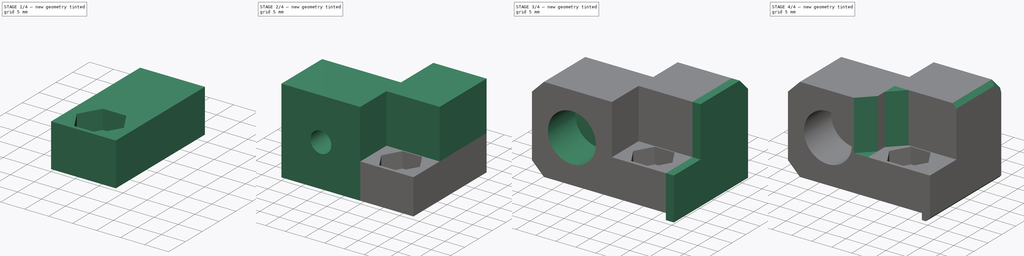
[diagram: build sequence overview — one tinted view per stage of 4, left to right]
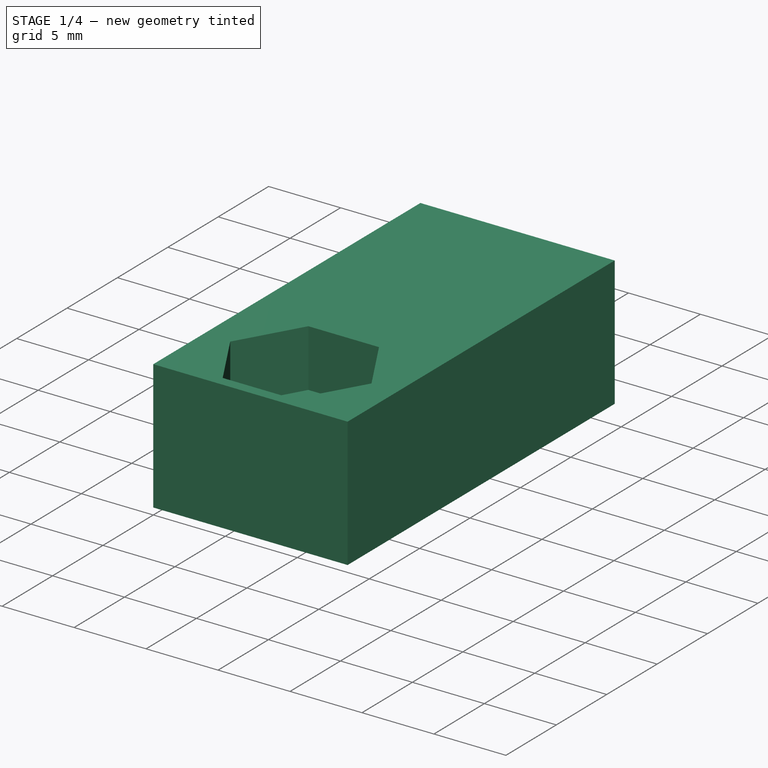
[diagram: stage 1 of 4 — iso view after this stage's code; geometry added in this stage tinted green]
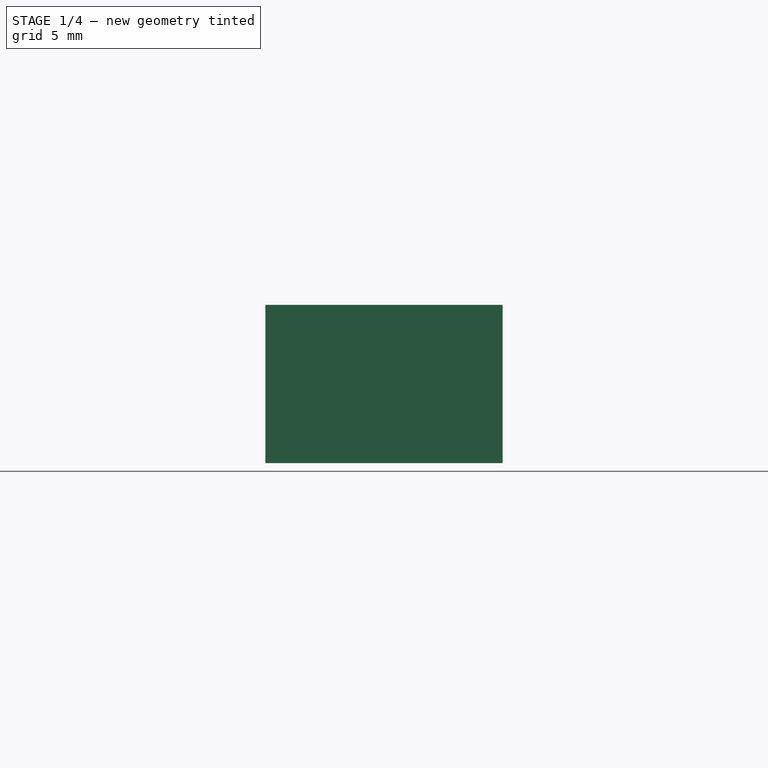
[diagram: stage 1 of 4 — front view after this stage's code; geometry added in this stage tinted green]
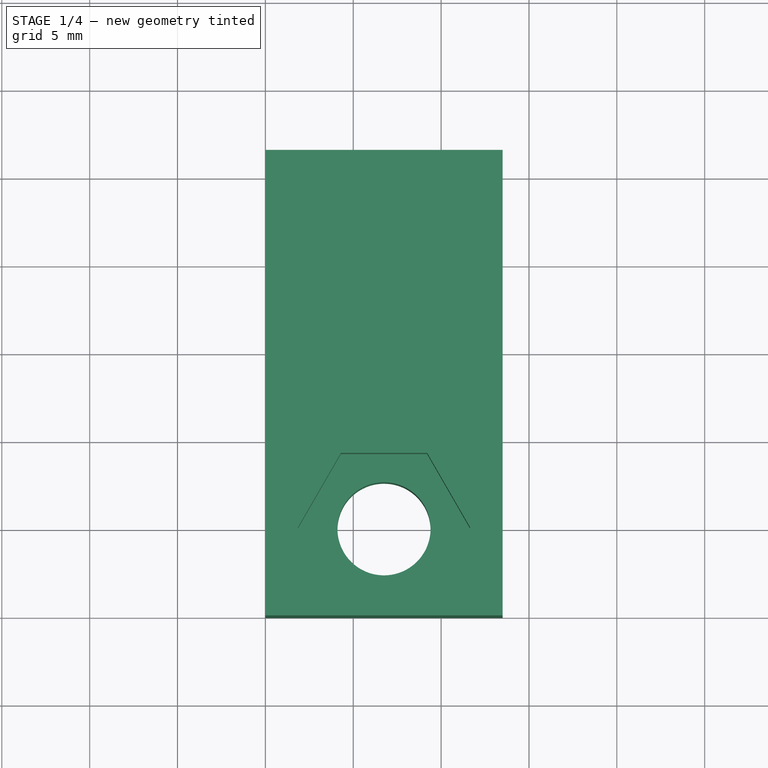
[diagram: stage 1 of 4 — top view after this stage's code; geometry added in this stage tinted green]
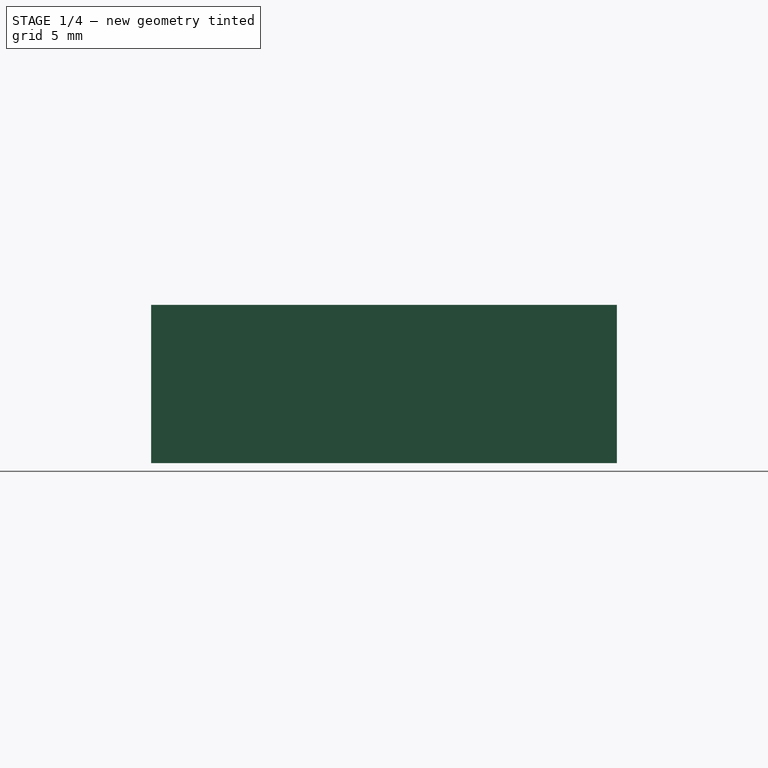
[diagram: stage 1 of 4 — right view after this stage's code; geometry added in this stage tinted green]
FCSTD DOCUMENT  (FreeCAD 0.18.4R)
Label: feeder-floor
License: All rights reserved
LicenseURL: http://en.wikipedia.org/wiki/All_rights_reserved
objects: Sketcher::SketchObject×6, PartDesign::Pad×5, PartDesign::Chamfer×3, PartDesign::Plane×2, PartDesign::Pocket×1, PartDesign::Body×1
note: 24 computed .brp shape members not serialized (recipe doc carries the construction recipe); baked Part::Feature solids carry a one-line shape summary decoded from their .brp

FEATURE [Sketcher::SketchObject] Sketch
  MapMode = 5
  Support = -> [XY_Plane]
  sketch-geometry (5):
    g0: LineSegment StartX=0 StartY=0 StartZ=0 EndX=13.5 EndY=0 EndZ=0
    g1: LineSegment StartX=13.5 StartY=0 StartZ=0 EndX=13.5 EndY=26.5 EndZ=0
    g2: LineSegment StartX=13.5 StartY=26.5 StartZ=0 EndX=0 EndY=26.5 EndZ=0
    g3: LineSegment StartX=0 StartY=26.5 StartZ=0 EndX=0 EndY=0 EndZ=0
    g4: Circle CenterX=6.75 CenterY=5 CenterZ=0 NormalX=0 NormalY=0 NormalZ=1 AngleXU=0 Radius=2.65
  constraints (14):
    c: Coincident(g0,g1)
    c: Coincident(g1,g2)
    c: Coincident(g2,g3)
    c: Coincident(g3,g0)
    c: Horizontal(g0)
    c: Horizontal(g2)
    c: Vertical(g1)
    c: Vertical(g3)
    c: Coincident(g0,g-1)
    c: DistanceY(g3,g3) = 26.5
    c: DistanceX(g0,g0) = 13.5
    c: Diameter(g4) = 5.3
    c: DistanceX(g0,g4) = 6.75
    c: DistanceY(g0,g4) = 5
FEATURE [PartDesign::Pad] Pad
  Length = 5
  Length2 = 100
  Profile = -> Sketch
  Reversed = true
  Type = 0
FEATURE [Sketcher::SketchObject] Sketch001
  MapMode = 5
  Support = -> [XY_Plane]
  sketch-geometry (13):
    g0: LineSegment StartX=0 StartY=0 StartZ=0 EndX=4.72927 EndY=0 EndZ=0
    g1: LineSegment StartX=13.5 StartY=0 StartZ=0 EndX=13.5 EndY=26.5 EndZ=0
    g2: LineSegment StartX=13.5 StartY=26.5 StartZ=0 EndX=0 EndY=26.5 EndZ=0
    g3: LineSegment StartX=0 StartY=26.5 StartZ=0 EndX=0 EndY=0 EndZ=0
    g4: LineSegment StartX=9.20374 StartY=0.75 StartZ=0 EndX=11.6575 EndY=5 EndZ=0
    g5: LineSegment StartX=11.6575 StartY=5 StartZ=0 EndX=9.20374 EndY=9.25 EndZ=0
    g6: LineSegment StartX=9.20374 StartY=9.25 StartZ=0 EndX=4.29626 EndY=9.25 EndZ=0
    g7: LineSegment StartX=4.29626 StartY=9.25 StartZ=0 EndX=1.84252 EndY=5 EndZ=0
    g8: LineSegment StartX=1.84252 StartY=5 StartZ=0 EndX=4.29626 EndY=0.75 EndZ=0
    g9: LineSegment StartX=4.29626 StartY=0.75 StartZ=0 EndX=9.20374 EndY=0.75 EndZ=0
    g10: Circle [constr] CenterX=6.75 CenterY=5 CenterZ=0 NormalX=0 NormalY=0 NormalZ=1 AngleXU=0 Radius=4.90748
    g11: LineSegment StartX=8.77073 StartY=0 StartZ=0 EndX=13.5 EndY=0 EndZ=0
    g12: LineSegment StartX=4.72927 StartY=0 StartZ=0 EndX=8.77073 EndY=0 EndZ=0
  constraints (33):
    c: Coincident(g11,g1)
    c: Coincident(g1,g2)
    c: Coincident(g2,g3)
    c: Coincident(g3,g0)
    c: Horizontal(g0)
    c: Horizontal(g2)
    c: Vertical(g1)
    c: Vertical(g3)
    c: Coincident(g0,g-1)
    c: DistanceY(g3,g3) = 26.5
    c: DistanceX(g0,g11) = 13.5
    c: Coincident(g4,g5)
    c: Coincident(g5,g6)
    c: Coincident(g6,g7)
    c: Coincident(g7,g8)
    c: Coincident(g8,g9)
    c: Coincident(g9,g4)
    c: Equal(g4, g5-g9) x5
    c: PointOnObject(g4,g10)
    c: PointOnObject(g5,g10)
    c: PointOnObject(g6,g10)
    c: PointOnObject(g7,g10)
    c: PointOnObject(g8,g10)
    c: PointOnObject(g9,g10)
    c: Horizontal(g6)
    c: DistanceY(g0,g10) = 5
    c: DistanceY(g4,g5) = 8.5
    c: DistanceX(g0,g10) = 6.75
    c: PointOnObject(g0,g8)
    c: PointOnObject(g11,g4)
    c: Tangent(g0,g11)
    c: Coincident(g12,g0)
    c: Coincident(g12,g11)
FEATURE [PartDesign::Pad] Pad001
  BaseFeature = -> Pad
  Length = 4
  Length2 = 100
  Profile = -> Sketch001
  Type = 0
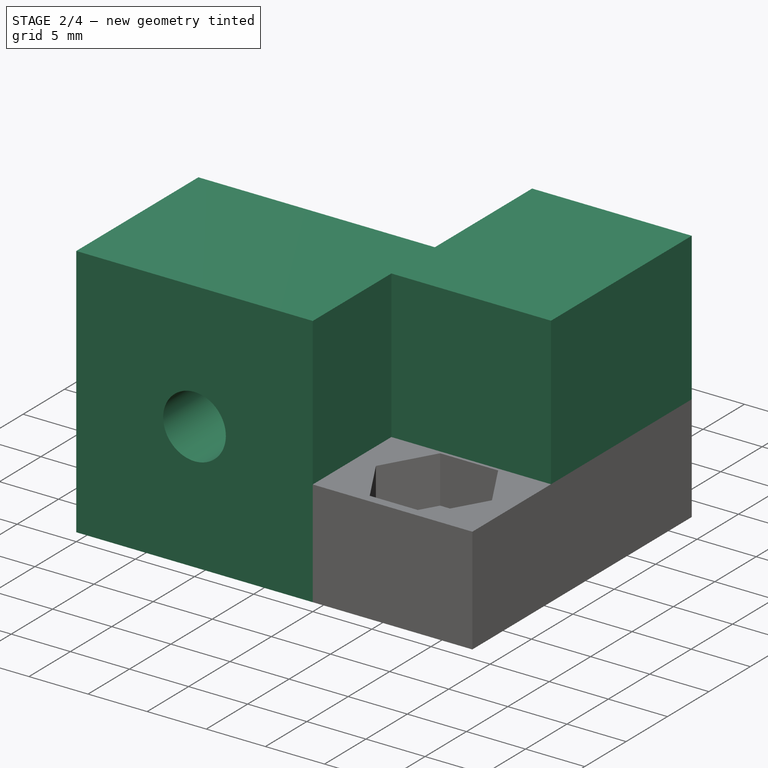
[diagram: stage 2 of 4 — iso view after this stage's code; geometry added in this stage tinted green]
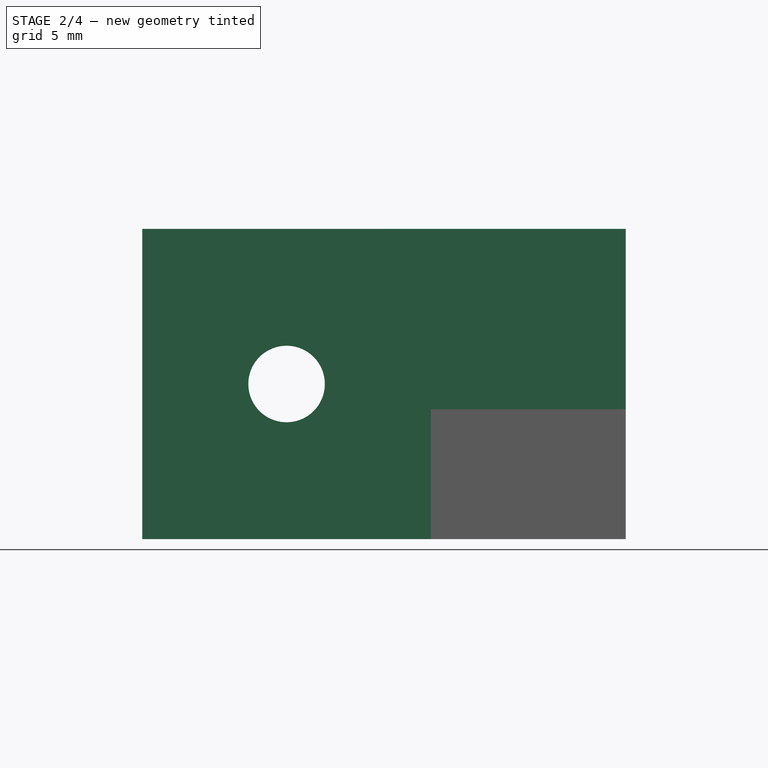
[diagram: stage 2 of 4 — front view after this stage's code; geometry added in this stage tinted green]
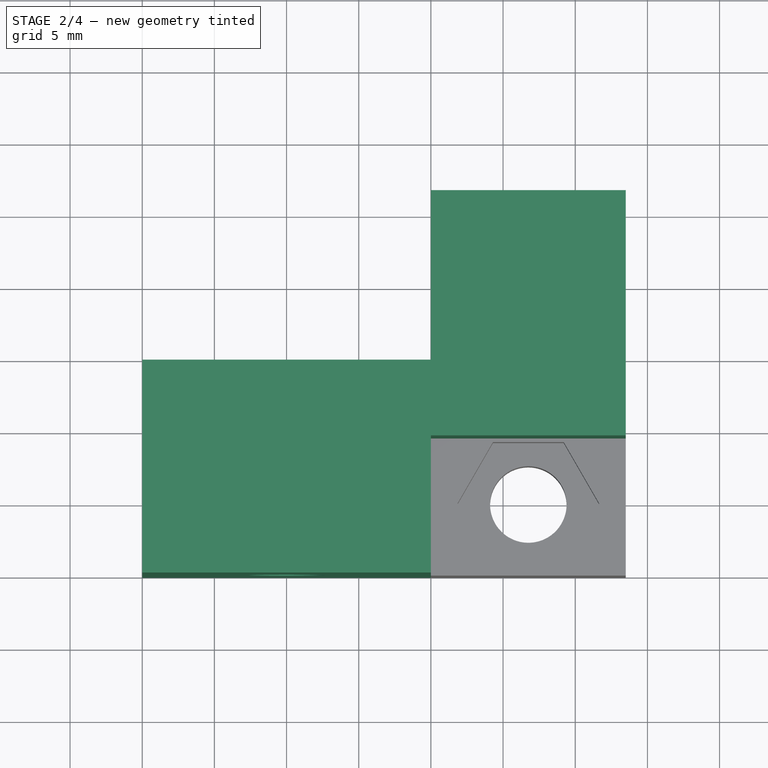
[diagram: stage 2 of 4 — top view after this stage's code; geometry added in this stage tinted green]
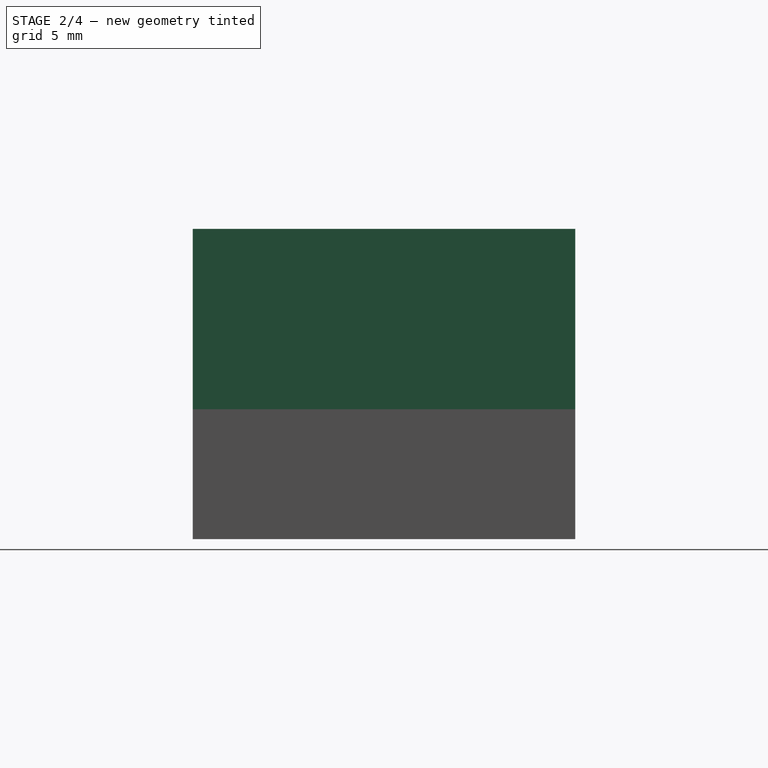
[diagram: stage 2 of 4 — right view after this stage's code; geometry added in this stage tinted green]
FEATURE [Sketcher::SketchObject] Sketch002
  MapMode = 5
  Support = -> [XY_Plane]
  sketch-geometry (4):
    g0: LineSegment StartX=0 StartY=26.5 StartZ=0 EndX=13.5 EndY=26.5 EndZ=0
    g1: LineSegment StartX=13.5 StartY=26.5 StartZ=0 EndX=13.5 EndY=9.5 EndZ=0
    g2: LineSegment StartX=13.5 StartY=9.5 StartZ=0 EndX=0 EndY=9.5 EndZ=0
    g3: LineSegment StartX=0 StartY=9.5 StartZ=0 EndX=0 EndY=26.5 EndZ=0
  constraints (12):
    c: Coincident(g0,g1)
    c: Coincident(g1,g2)
    c: Coincident(g2,g3)
    c: Coincident(g3,g0)
    c: Horizontal(g0)
    c: Horizontal(g2)
    c: Vertical(g1)
    c: Vertical(g3)
    c: PointOnObject(g0,g-2)
    c: DistanceX(g0,g0) = 13.5
    c: DistanceY(g-1,g0) = 26.5
    c: DistanceY(g3,g3) = 17
FEATURE [PartDesign::Pad] Pad002
  BaseFeature = -> Pad001
  Length = 16.5
  Length2 = 100
  Profile = -> Sketch002
  Type = 0
FEATURE [PartDesign::Plane] DatumPlane
  AttachmentOffset = pos=(0,0,-14.75) rot=(0,0,1;0rad)
  Length = 41.6343
  MapMode = 5
  Placement = pos=(0,14.75,3.3e-15) rot=(1,0,0;1.5708rad)
  ResizeMode = 0
  Support = -> [XZ_Plane]
  Width = 32.6343
FEATURE [Sketcher::SketchObject] Sketch003
  MapMode = 5
  Placement = pos=(0,14.75,3.3e-15) rot=(1,0,0;1.5708rad)
  Support = -> [DatumPlane]
  sketch-geometry (6):
    g0: LineSegment StartX=0 StartY=-5 StartZ=0 EndX=-20 EndY=-5 EndZ=0
    g1: LineSegment StartX=-20 StartY=-5 StartZ=0 EndX=-20 EndY=16.5 EndZ=0
    g2: LineSegment StartX=-20 StartY=16.5 StartZ=0 EndX=0 EndY=16.5 EndZ=0
    g3: LineSegment StartX=0 StartY=16.5 StartZ=0 EndX=0 EndY=-5 EndZ=0
    g4: Circle CenterX=-10 CenterY=5.75 CenterZ=0 NormalX=0 NormalY=0 NormalZ=1 AngleXU=0 Radius=2.65
    g5: LineSegment [constr] StartX=-20 StartY=5.75 StartZ=0 EndX=0 EndY=5.75 EndZ=0
  constraints (18):
    c: Coincident(g0,g1)
    c: Coincident(g1,g2)
    c: Coincident(g2,g3)
    c: Coincident(g3,g0)
    c: Horizontal(g0)
    c: Horizontal(g2)
    c: Vertical(g1)
    c: Vertical(g3)
    c: PointOnObject(g0,g-2)
    c: DistanceX(g0,g0) = 20
    c: DistanceY(g-1,g2) = 16.5
    c: DistanceY(g0,g-1) = 5
    c: Diameter(g4) = 5.3
    c: PointOnObject(g5,g1)
    c: PointOnObject(g5,g3)
    c: Symmetric(g1,g0,g5)
    c: PointOnObject(g4,g5)
    c: DistanceX(g4,g2) = 10
FEATURE [PartDesign::Pad] Pad003
  BaseFeature = -> Pad002
  Length = 14.75
  Length2 = 100
  Profile = -> Sketch003
  Type = 0
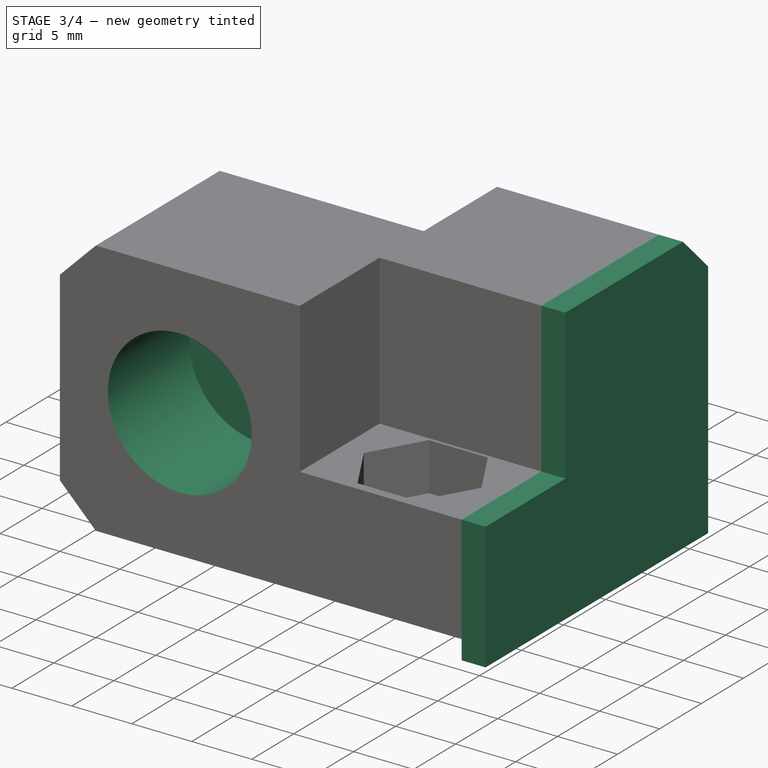
[diagram: stage 3 of 4 — iso view after this stage's code; geometry added in this stage tinted green]
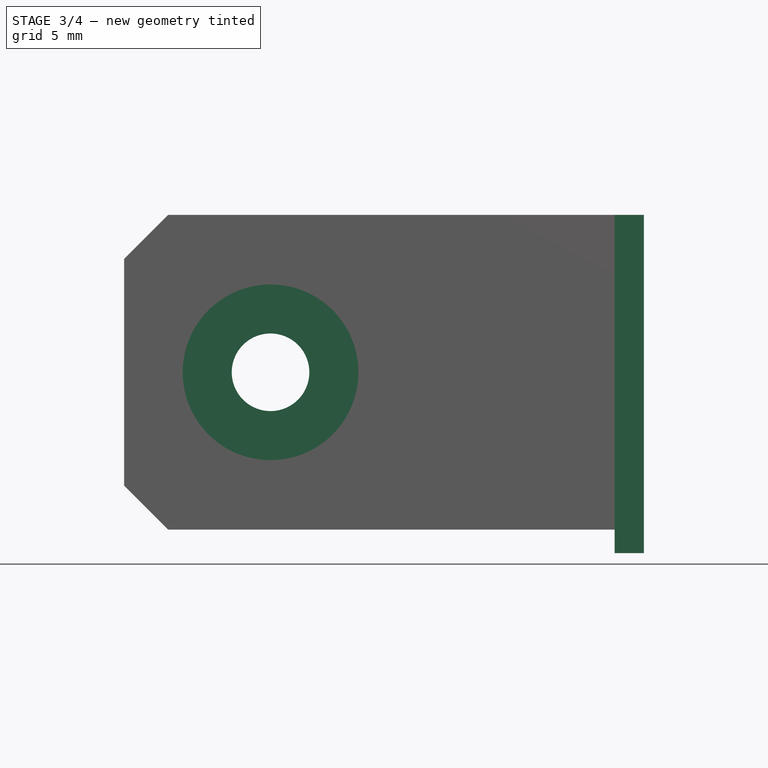
[diagram: stage 3 of 4 — front view after this stage's code; geometry added in this stage tinted green]
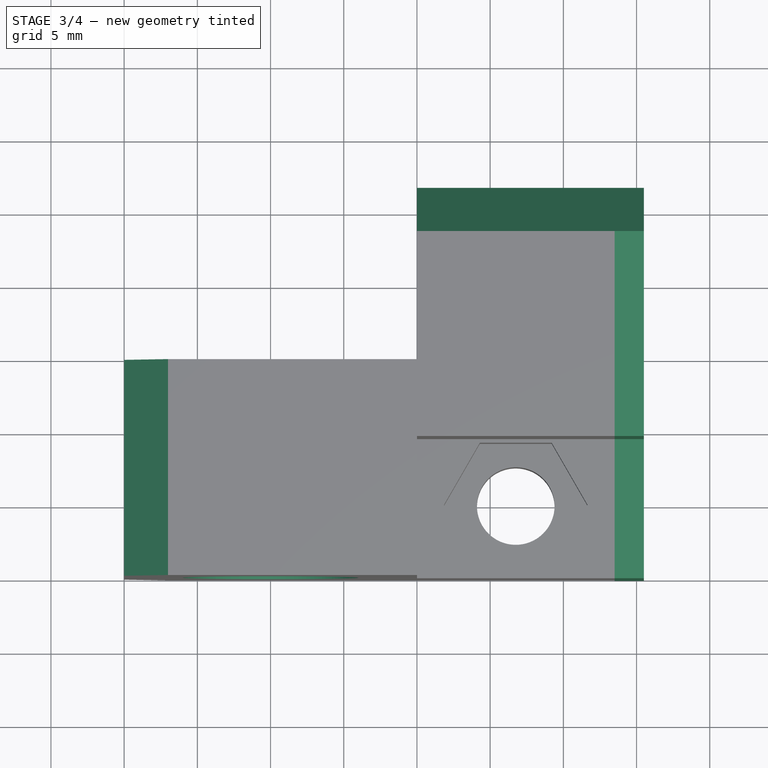
[diagram: stage 3 of 4 — top view after this stage's code; geometry added in this stage tinted green]
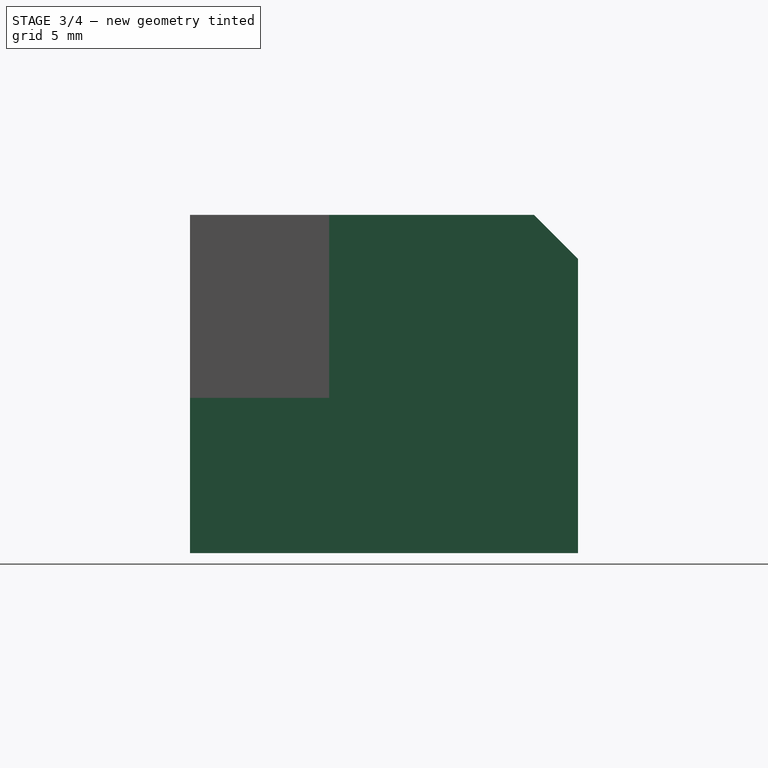
[diagram: stage 3 of 4 — right view after this stage's code; geometry added in this stage tinted green]
FEATURE [Sketcher::SketchObject] Sketch004
  MapMode = 5
  Placement = pos=(0,0,0) rot=(1,0,0;1.5708rad)
  Support = -> [XZ_Plane]
  sketch-geometry (1):
    g0: Circle CenterX=-10 CenterY=5.75 CenterZ=0 NormalX=0 NormalY=0 NormalZ=1 AngleXU=0 Radius=6
  constraints (3):
    c: DistanceX(g0,g-1) = 10
    c: DistanceY(g-1,g0) = 5.75
    c: Diameter(g0) = 12
FEATURE [PartDesign::Pocket] Pocket
  BaseFeature = -> Pad003
  Length = 9.75
  Length2 = 100
  Profile = -> Sketch004
  Type = 0
FEATURE [PartDesign::Plane] DatumPlane001
  AttachmentOffset = pos=(0,0,13.5) rot=(0,0,1;0rad)
  Length = 42.7201
  MapMode = 5
  Placement = pos=(13.5,-3e-15,3e-15) rot=(0.57735,0.57735,0.57735;2.0944rad)
  ResizeMode = 0
  Support = -> [YZ_Plane]
  Width = 32.7201
FEATURE [Sketcher::SketchObject] Sketch005
  MapMode = 5
  Placement = pos=(13.5,-3e-15,3e-15) rot=(0.57735,0.57735,0.57735;2.0944rad)
  Support = -> [DatumPlane001]
  sketch-geometry (7):
    g0: LineSegment StartX=0 StartY=0 StartZ=0 EndX=0 EndY=-6.6 EndZ=0
    g1: LineSegment StartX=0 StartY=-6.6 StartZ=0 EndX=26.5 EndY=-6.6 EndZ=0
    g2: LineSegment StartX=26.5 StartY=-6.6 StartZ=0 EndX=26.5 EndY=16.5 EndZ=0
    g3: LineSegment StartX=26.5 StartY=16.5 StartZ=0 EndX=9.5 EndY=16.5 EndZ=0
    g4: LineSegment StartX=9.5 StartY=16.5 StartZ=0 EndX=9.5 EndY=4 EndZ=0
    g5: LineSegment StartX=0 StartY=0 StartZ=0 EndX=0 EndY=4 EndZ=0
    g6: LineSegment StartX=0 StartY=4 StartZ=0 EndX=9.5 EndY=4 EndZ=0
  constraints (20):
    c: Coincident(g-1,g0)
    c: PointOnObject(g0,g-2)
    c: Coincident(g0,g1)
    c: Horizontal(g1)
    c: Coincident(g1,g2)
    c: Vertical(g2)
    c: Coincident(g2,g3)
    c: Horizontal(g3)
    c: Coincident(g3,g4)
    c: Vertical(g4)
    c: PointOnObject(g5,g-2)
    c: Coincident(g5,g6)
    c: Coincident(g6,g4)
    c: Horizontal(g6)
    c: DistanceY(g0,g5) = 4
    c: DistanceX(g6,g6) = 9.5
    c: DistanceY(g0,g0) = 6.6
    c: DistanceX(g1,g1) = 26.5
    c: DistanceY(g4,g4) = 12.5
    c: Coincident(g5,g0)
FEATURE [PartDesign::Pad] Pad004
  BaseFeature = -> Pocket
  Length = 2
  Length2 = 100
  Profile = -> Sketch005
  Type = 0
FEATURE [PartDesign::Chamfer] Chamfer
  Base = -> Pad004 [Edge67,Edge74,Edge28,Edge30]
  BaseFeature = -> Pad004
  Size = 3
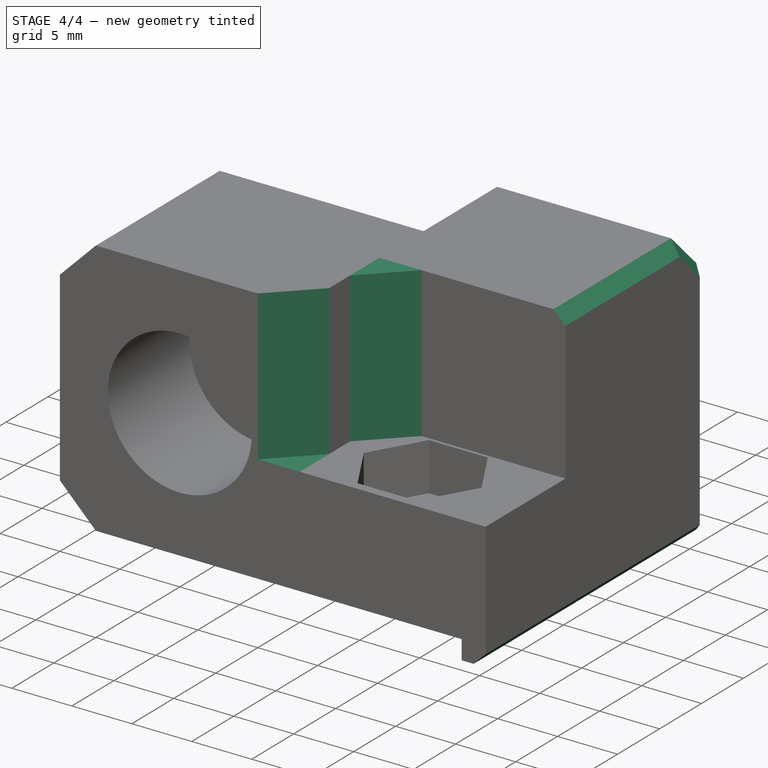
[diagram: stage 4 of 4 — iso view after this stage's code; geometry added in this stage tinted green]
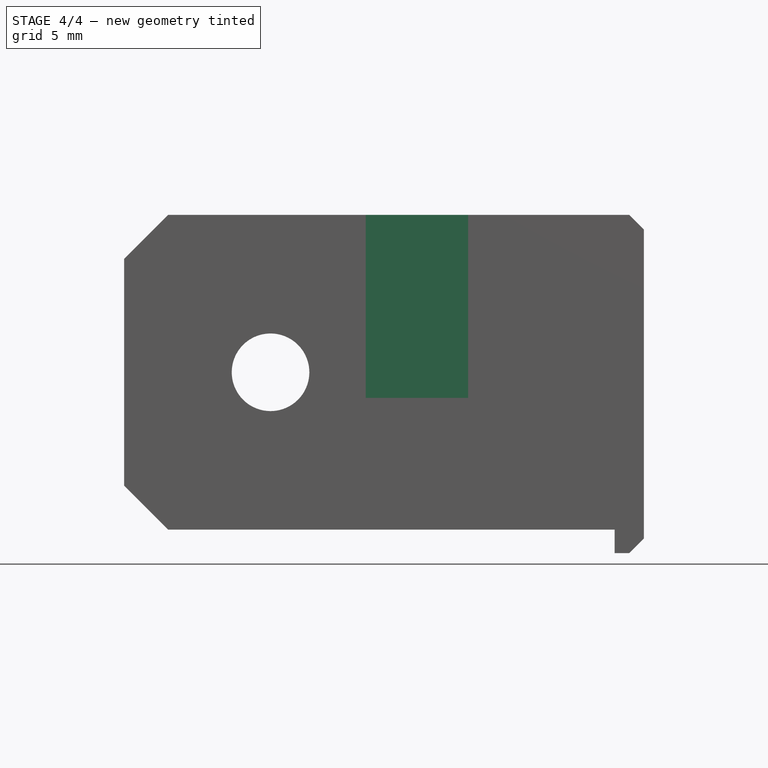
[diagram: stage 4 of 4 — front view after this stage's code; geometry added in this stage tinted green]
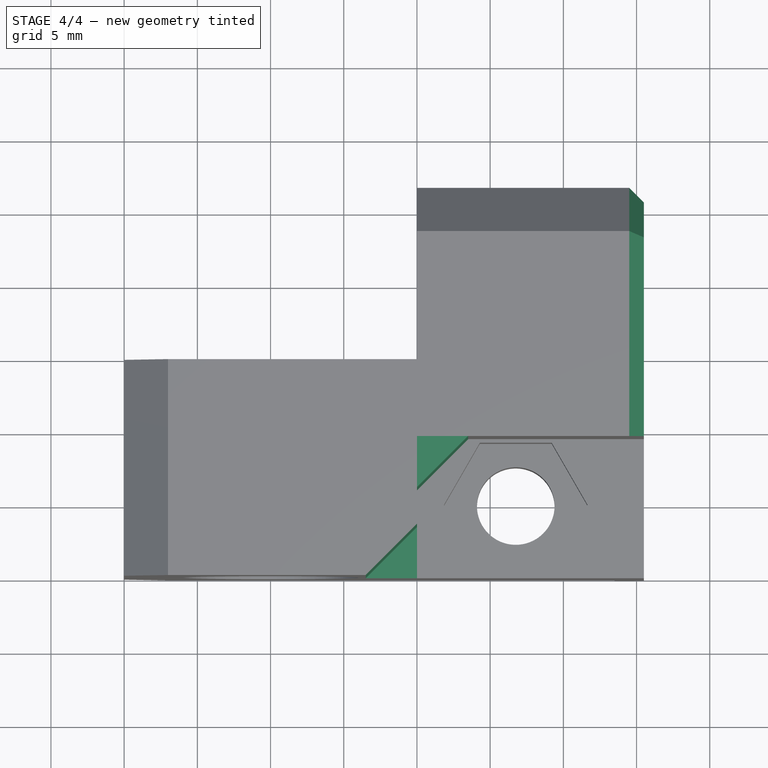
[diagram: stage 4 of 4 — top view after this stage's code; geometry added in this stage tinted green]
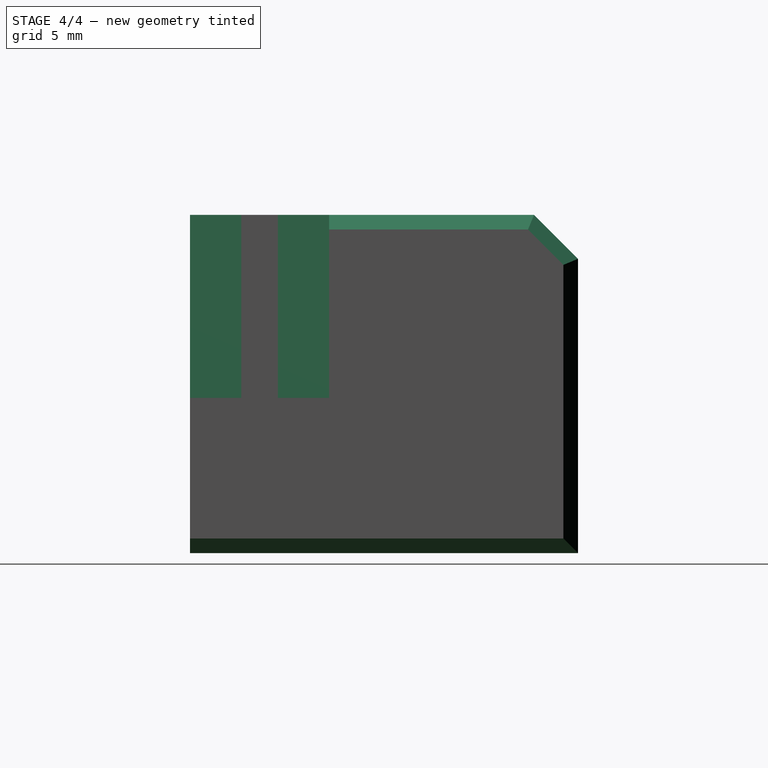
[diagram: stage 4 of 4 — right view after this stage's code; geometry added in this stage tinted green]
FEATURE [PartDesign::Chamfer] Chamfer001
  Base = -> Chamfer [Edge26,Edge7]
  BaseFeature = -> Chamfer
  Size = 3.5
FEATURE [PartDesign::Chamfer] Chamfer002
  Base = -> Chamfer001 [Edge95,Edge102,Edge101,Edge100]
  BaseFeature = -> Chamfer001
  Size = 1
FEATURE [PartDesign::Body] Body
  Group = -> [Sketch,Pad,Sketch001,Pad001,Sketch002,Pad002,DatumPlane,Sketch003,Pad003,Sketch004,Pocket,DatumPlane001,Sketch005,Pad004,Chamfer,Chamfer001,Chamfer002]
  Origin = -> Origin
  Tip = -> Chamfer002
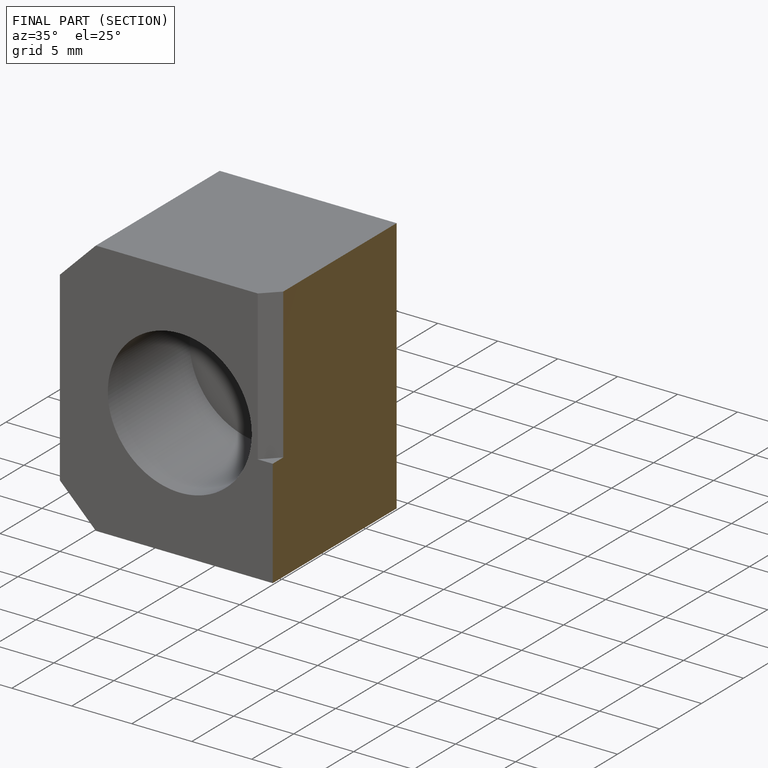
[diagram: finished part — half-section view (interior)]
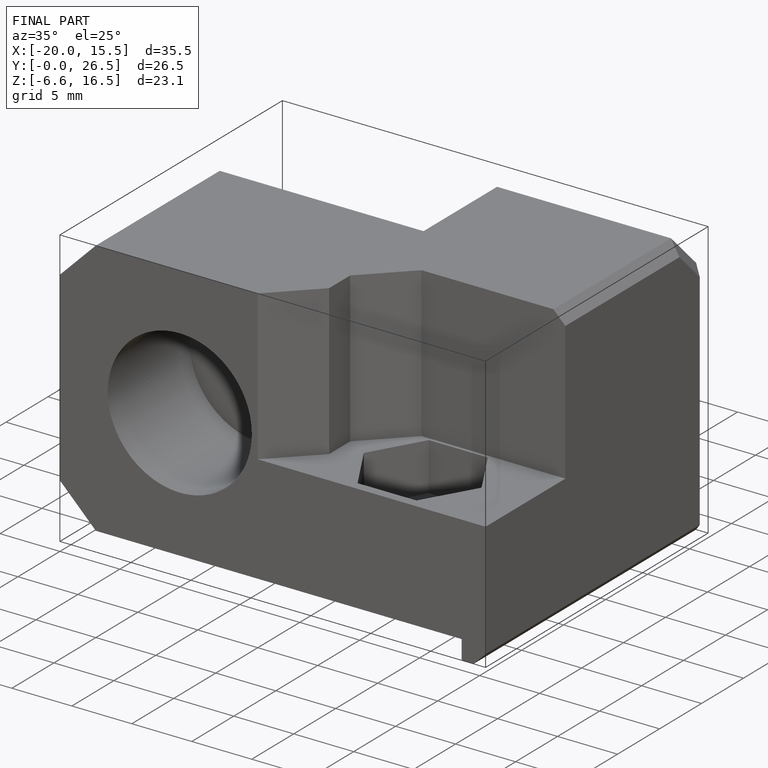
[diagram: finished part — iso view with bounding-box wireframe]
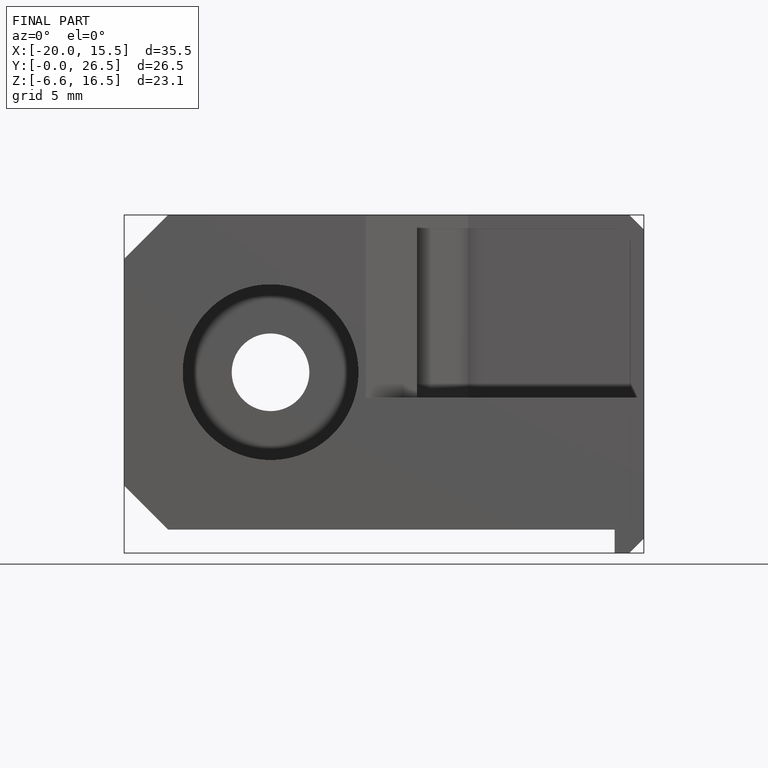
[diagram: finished part — front view with bounding-box wireframe]
